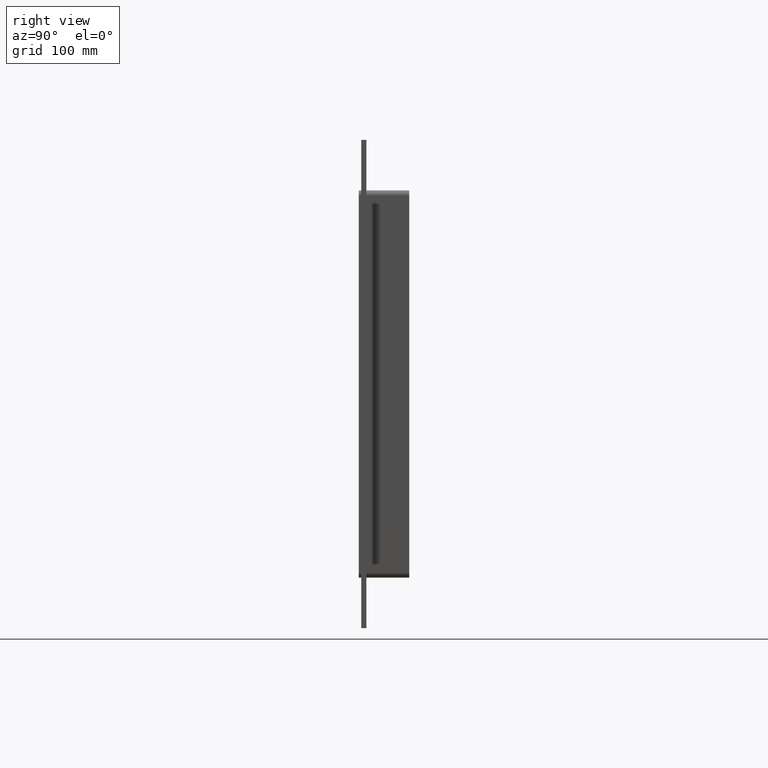
[diagram: clean part render]
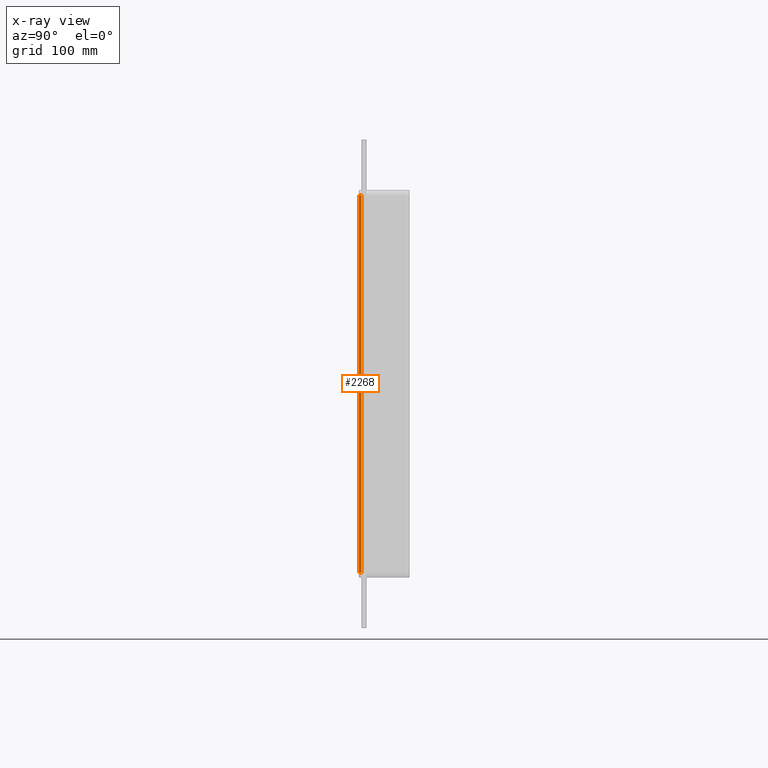
[diagram: x-ray — body ghosted, one internal face saturated and labeled with its STEP entity id]
A machine part, right view, then the same camera in x-ray: the body is ghosted and one INTERNAL B-rep face — a face not visible from any outside direction — is saturated and labeled: STEP entity #2268.
In plain terms, the highlighted planar face has unit normal (-1, 0, 0).
Its self-contained STEP definition (entity closure, byte-faithful):
#905=CARTESIAN_POINT('',(-262.0,-3.0,224.00000000000003));
#906=VERTEX_POINT('',#905);
#914=CARTESIAN_POINT('',(-262.0,-3.0,-224.00000000000003));
#915=VERTEX_POINT('',#914);
#916=CARTESIAN_POINT('',(-262.0,-3.0,224.00000000000003));
#917=DIRECTION('',(0.0,0.0,-1.0));
#918=VECTOR('',#917,448.0);
#919=LINE('',#916,#918);
#920=EDGE_CURVE('',#906,#915,#919,.T.);
#1921=CARTESIAN_POINT('',(-262.0,0.0,-224.00000000000003));
#1922=VERTEX_POINT('',#1921);
#1932=CARTESIAN_POINT('',(-262.0,0.0,224.00000000000003));
#1933=VERTEX_POINT('',#1932);
#1934=CARTESIAN_POINT('',(-262.0,0.0,224.00000000000006));
#1935=DIRECTION('',(0.0,0.0,-1.0));
#1936=VECTOR('',#1935,448.00000000000006);
#1937=LINE('',#1934,#1936);
#1938=EDGE_CURVE('',#1933,#1922,#1937,.T.);
#2207=CARTESIAN_POINT('',(-262.0,0.0,224.00000000000003));
#2208=DIRECTION('',(0.0,-1.0,0.0));
#2209=VECTOR('',#2208,3.0);
#2210=LINE('',#2207,#2209);
#2211=EDGE_CURVE('',#1933,#906,#2210,.T.);
#2252=CARTESIAN_POINT('',(-262.0,0.0,-230.00000000000003));
#2253=DIRECTION('',(-1.0,0.0,0.0));
#2254=DIRECTION('',(0.0,0.0,1.0));
#2255=AXIS2_PLACEMENT_3D('',#2252,#2253,#2254);
#2256=PLANE('',#2255);
#2257=ORIENTED_EDGE('',*,*,#1938,.T.);
#2258=CARTESIAN_POINT('',(-262.0,-3.0,-224.00000000000003));
#2259=DIRECTION('',(0.0,1.0,0.0));
#2260=VECTOR('',#2259,3.0);
#2261=LINE('',#2258,#2260);
#2262=EDGE_CURVE('',#915,#1922,#2261,.T.);
#2263=ORIENTED_EDGE('',*,*,#2262,.F.);
#2264=ORIENTED_EDGE('',*,*,#920,.F.);
#2265=ORIENTED_EDGE('',*,*,#2211,.F.);
#2266=EDGE_LOOP('',(#2257,#2263,#2264,#2265));
#2267=FACE_OUTER_BOUND('',#2266,.T.);
#2268=ADVANCED_FACE('',(#2267),#2256,.T.);